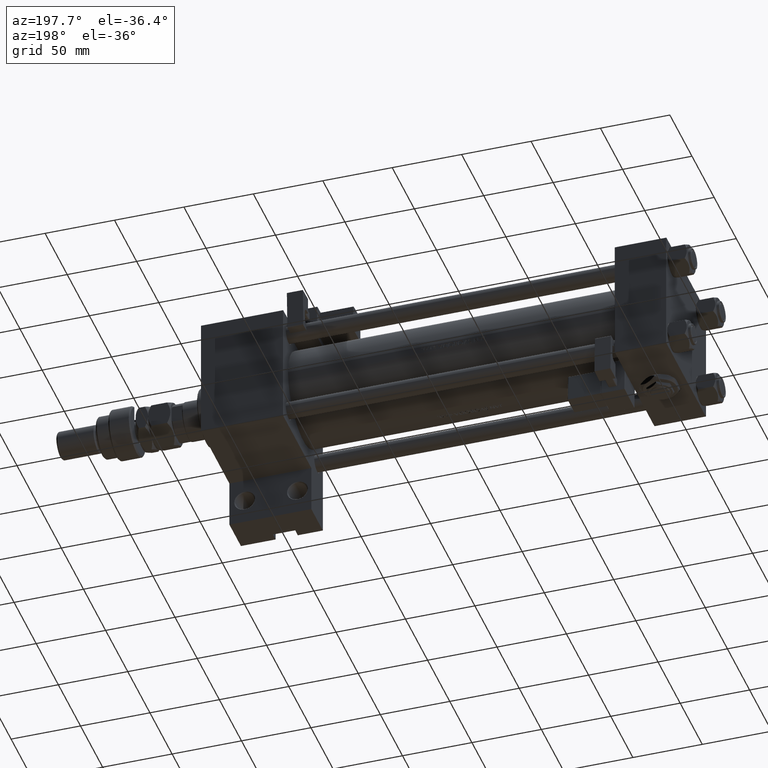
[diagram: clean part render]
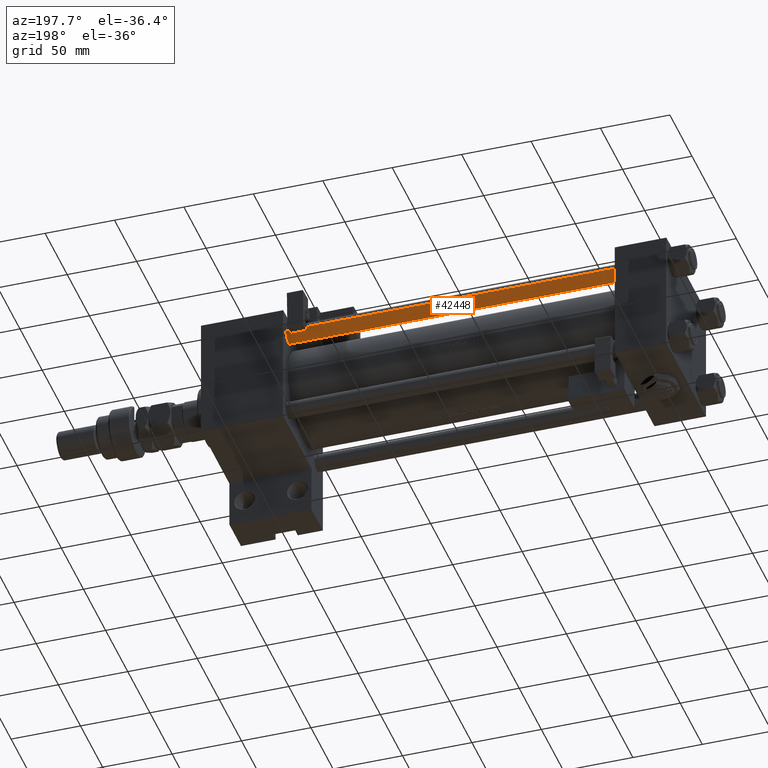
[diagram: same view with one face highlighted and labeled with its STEP entity id]
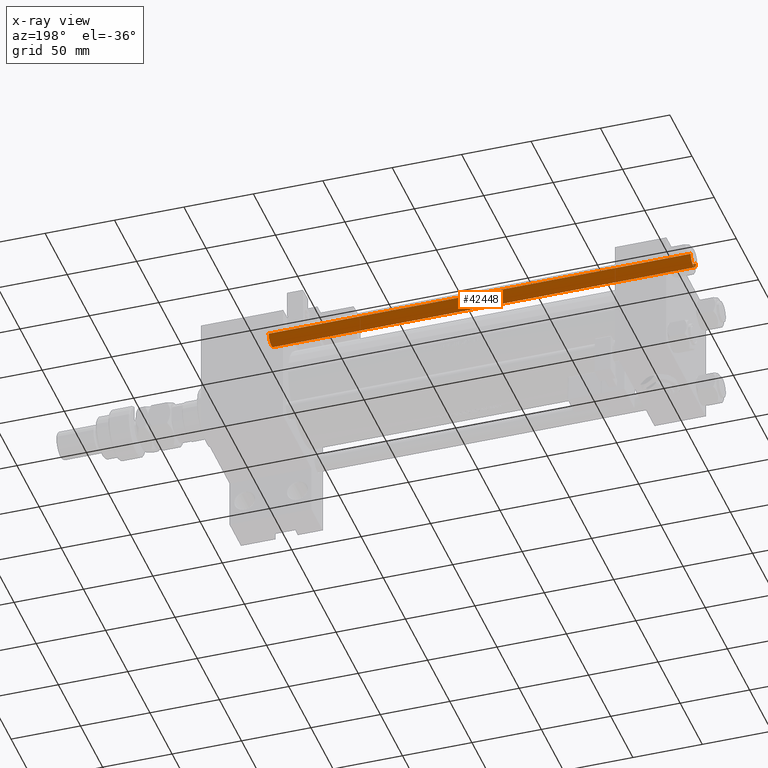
[diagram: x-ray of the same camera — body ghosted, the highlighted face saturated]
A machine part, auxiliary view. The second image highlights one B-rep face of the part: STEP entity #42448.
The next image is the same camera in x-ray: the body ghosted, the highlighted face saturated — about 0% of this face is hidden behind the body in this view.
In plain terms, the highlighted cylindrical surface (edge-blend (fillet) strip) has radius 6 mm, axis along (1, -0, 0).
Its self-contained STEP definition (entity closure, byte-faithful):
#1520 = DIRECTION ( 'NONE',  ( -0.000000000000000000, -0.000000000000000000, -1.000000000000000000 ) ) ;
#2450 = VECTOR ( 'NONE', #13143, 1000.000000000000000 ) ;
#4004 = DIRECTION ( 'NONE',  ( 1.000000000000000000, 0.000000000000000000, 0.000000000000000000 ) ) ;
#4058 = DIRECTION ( 'NONE',  ( 1.000000000000000000, 0.000000000000000000, 0.000000000000000000 ) ) ;
#5638 = CYLINDRICAL_SURFACE ( 'NONE', #24272, 6.000000000000000888 ) ;
#7272 = VERTEX_POINT ( 'NONE', #20732 ) ;
#8517 = EDGE_LOOP ( 'NONE', ( #25978, #30383, #19981, #30646 ) ) ;
#9741 = CIRCLE ( 'NONE', #53492, 6.000000000000000888 ) ;
#10581 = DIRECTION ( 'NONE',  ( -1.000000000000000000, 0.000000000000000000, 0.000000000000000000 ) ) ;
#11996 = CARTESIAN_POINT ( 'NONE',  ( 6.000000000000000888, 7.347880794884120722E-16, 305.0000000000000000 ) ) ;
#13143 = DIRECTION ( 'NONE',  ( -0.000000000000000000, -0.000000000000000000, -1.000000000000000000 ) ) ;
#13584 = CARTESIAN_POINT ( 'NONE',  ( 0.000000000000000000, 0.000000000000000000, 304.5000000000000000 ) ) ;
#14498 = EDGE_CURVE ( 'NONE', #7272, #34097, #9741, .T. ) ;
#19188 = CARTESIAN_POINT ( 'NONE',  ( -6.000000000000000888, 0.000000000000000000, 304.5000000000000000 ) ) ;
#19361 = CARTESIAN_POINT ( 'NONE',  ( 0.000000000000000000, 0.000000000000000000, 305.0000000000000000 ) ) ;
#19486 = CARTESIAN_POINT ( 'NONE',  ( -6.000000000000000888, 0.000000000000000000, 0.5000000000000004441 ) ) ;
#19981 = ORIENTED_EDGE ( 'NONE', *, *, #14498, .T. ) ;
#20732 = CARTESIAN_POINT ( 'NONE',  ( 6.000000000000000888, 7.347880794884120722E-16, 0.5000000000000004441 ) ) ;
#21044 = LINE ( 'NONE', #11996, #28685 ) ;
#22463 = CARTESIAN_POINT ( 'NONE',  ( -6.000000000000000888, 0.000000000000000000, 305.0000000000000000 ) ) ;
#24141 = VERTEX_POINT ( 'NONE', #19188 ) ;
#24272 = AXIS2_PLACEMENT_3D ( 'NONE', #19361, #1520, #10581 ) ;
#24341 = DIRECTION ( 'NONE',  ( -0.000000000000000000, -0.000000000000000000, -1.000000000000000000 ) ) ;
#25978 = ORIENTED_EDGE ( 'NONE', *, *, #35396, .T. ) ;
#28685 = VECTOR ( 'NONE', #24341, 1000.000000000000000 ) ;
#30383 = ORIENTED_EDGE ( 'NONE', *, *, #43253, .T. ) ;
#30646 = ORIENTED_EDGE ( 'NONE', *, *, #31354, .F. ) ;
#31354 = EDGE_CURVE ( 'NONE', #24141, #34097, #50666, .T. ) ;
#32710 = AXIS2_PLACEMENT_3D ( 'NONE', #13584, #50295, #4004 ) ;
#34097 = VERTEX_POINT ( 'NONE', #19486 ) ;
#35396 = EDGE_CURVE ( 'NONE', #24141, #42710, #44087, .T. ) ;
#42448 = ADVANCED_FACE ( 'NONE', ( #48663 ), #5638, .T. ) ;
#42710 = VERTEX_POINT ( 'NONE', #51795 ) ;
#43253 = EDGE_CURVE ( 'NONE', #42710, #7272, #21044, .T. ) ;
#44087 = CIRCLE ( 'NONE', #32710, 6.000000000000000888 ) ;
#44907 = CARTESIAN_POINT ( 'NONE',  ( 0.000000000000000000, 0.000000000000000000, 0.5000000000000004441 ) ) ;
#48663 = FACE_OUTER_BOUND ( 'NONE', #8517, .T. ) ;
#49551 = DIRECTION ( 'NONE',  ( -0.000000000000000000, -0.000000000000000000, 1.000000000000000000 ) ) ;
#50295 = DIRECTION ( 'NONE',  ( 0.000000000000000000, 0.000000000000000000, -1.000000000000000000 ) ) ;
#50666 = LINE ( 'NONE', #22463, #2450 ) ;
#51795 = CARTESIAN_POINT ( 'NONE',  ( 6.000000000000000888, 7.347880794884120722E-16, 304.5000000000000000 ) ) ;
#53492 = AXIS2_PLACEMENT_3D ( 'NONE', #44907, #49551, #4058 ) ;